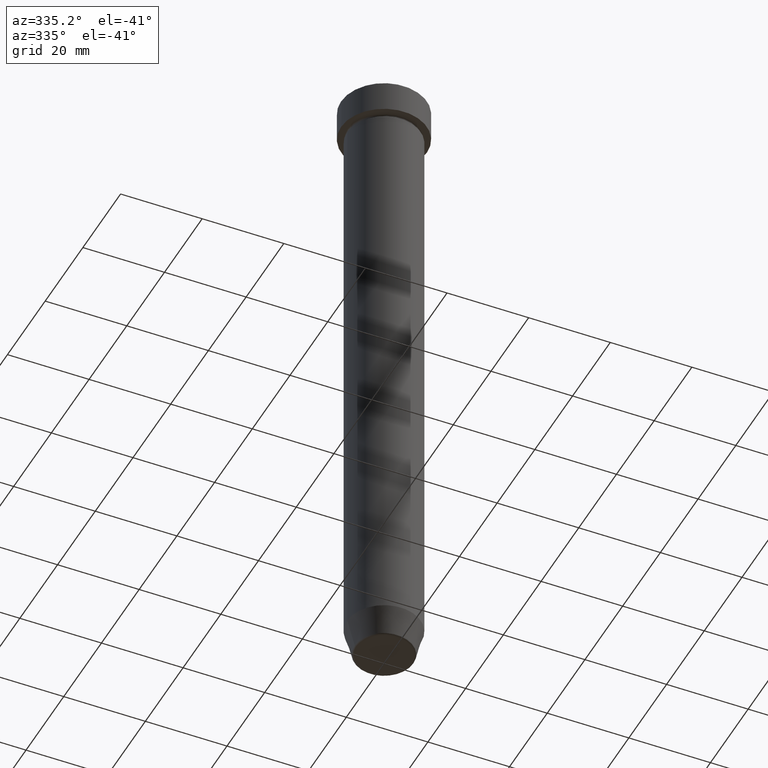
[diagram: clean part render]
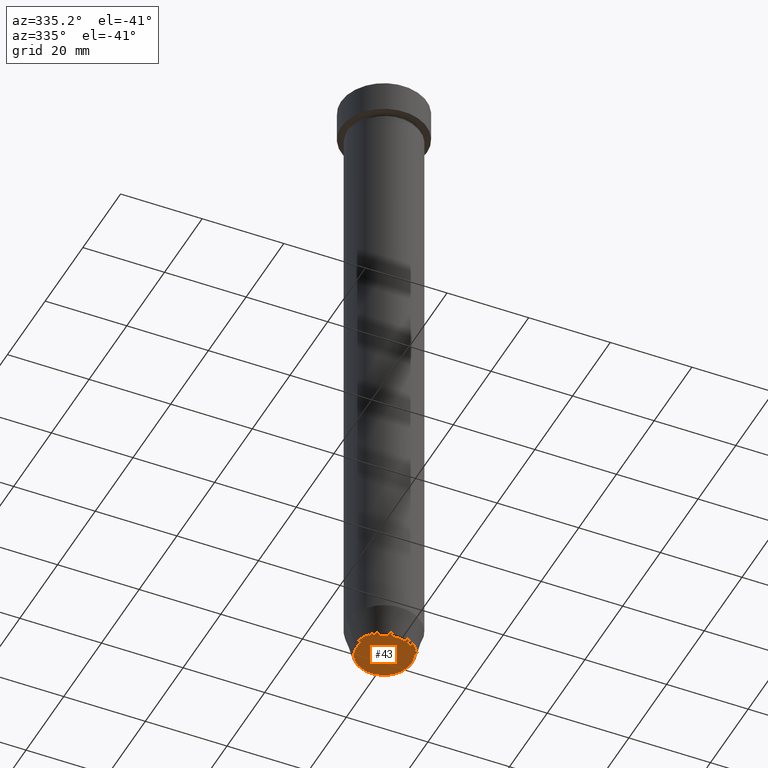
[diagram: same view with one face highlighted and labeled with its STEP entity id]
A machine part, auxiliary view. The second image highlights one B-rep face of the part: STEP entity #43.
In plain terms, the highlighted planar face has unit normal (0, -0, 1).
Its self-contained STEP definition (entity closure, byte-faithful):
#5 = CARTESIAN_POINT ( 'NONE',  ( 0.000000000000000000, 0.000000000000000000, -160.0000000000000000 ) ) ;
#43 = ADVANCED_FACE ( 'NONE', ( #282 ), #588, .F. ) ;
#53 = DIRECTION ( 'NONE',  ( 0.000000000000000000, 0.000000000000000000, -1.000000000000000000 ) ) ;
#55 = DIRECTION ( 'NONE',  ( 1.000000000000000000, 0.000000000000000000, 0.000000000000000000 ) ) ;
#63 = AXIS2_PLACEMENT_3D ( 'NONE', #446, #574, #399 ) ;
#85 = CIRCLE ( 'NONE', #63, 6.740692158992650285 ) ;
#89 = AXIS2_PLACEMENT_3D ( 'NONE', #5, #53, #390 ) ;
#93 = VERTEX_POINT ( 'NONE', #427 ) ;
#100 = ORIENTED_EDGE ( 'NONE', *, *, #456, .T. ) ;
#184 = CARTESIAN_POINT ( 'NONE',  ( -6.740692158992650285, 8.550696569392675821E-16, -160.0000000000000000 ) ) ;
#250 = EDGE_LOOP ( 'NONE', ( #329, #100 ) ) ;
#282 = FACE_OUTER_BOUND ( 'NONE', #250, .T. ) ;
#320 = EDGE_CURVE ( 'NONE', #93, #528, #85, .T. ) ;
#329 = ORIENTED_EDGE ( 'NONE', *, *, #320, .T. ) ;
#371 = CARTESIAN_POINT ( 'NONE',  ( 0.000000000000000000, 1.347111479062088839E-14, -160.0000000000000000 ) ) ;
#390 = DIRECTION ( 'NONE',  ( 1.000000000000000000, 0.000000000000000000, 0.000000000000000000 ) ) ;
#399 = DIRECTION ( 'NONE',  ( 1.000000000000000000, 0.000000000000000000, 0.000000000000000000 ) ) ;
#427 = CARTESIAN_POINT ( 'NONE',  ( 6.740692158992650285, 0.000000000000000000, -160.0000000000000000 ) ) ;
#446 = CARTESIAN_POINT ( 'NONE',  ( 0.000000000000000000, 0.000000000000000000, -160.0000000000000000 ) ) ;
#456 = EDGE_CURVE ( 'NONE', #528, #93, #525, .T. ) ;
#478 = DIRECTION ( 'NONE',  ( 0.000000000000000000, -0.000000000000000000, 1.000000000000000000 ) ) ;
#525 = CIRCLE ( 'NONE', #89, 6.740692158992650285 ) ;
#528 = VERTEX_POINT ( 'NONE', #184 ) ;
#554 = AXIS2_PLACEMENT_3D ( 'NONE', #371, #478, #55 ) ;
#574 = DIRECTION ( 'NONE',  ( 0.000000000000000000, 0.000000000000000000, -1.000000000000000000 ) ) ;
#588 = PLANE ( 'NONE',  #554 ) ;